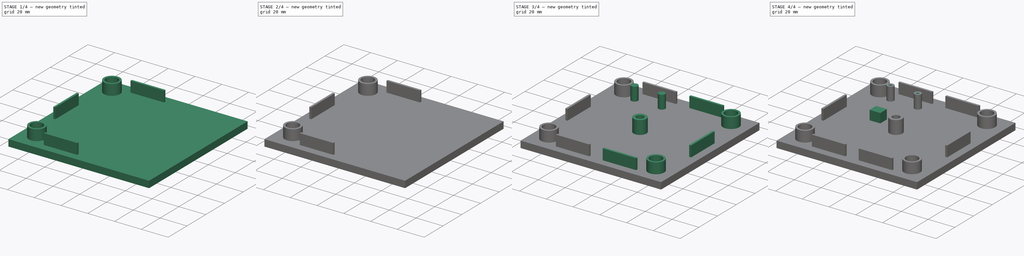
[diagram: build sequence overview — one tinted view per stage of 4, left to right]
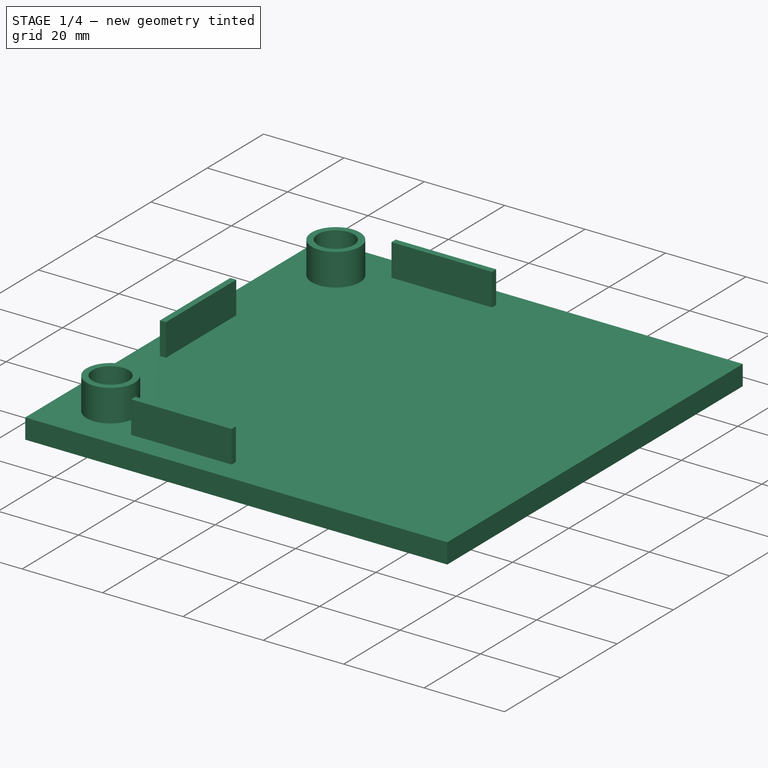
[diagram: stage 1 of 4 — iso view after this stage's code; geometry added in this stage tinted green]
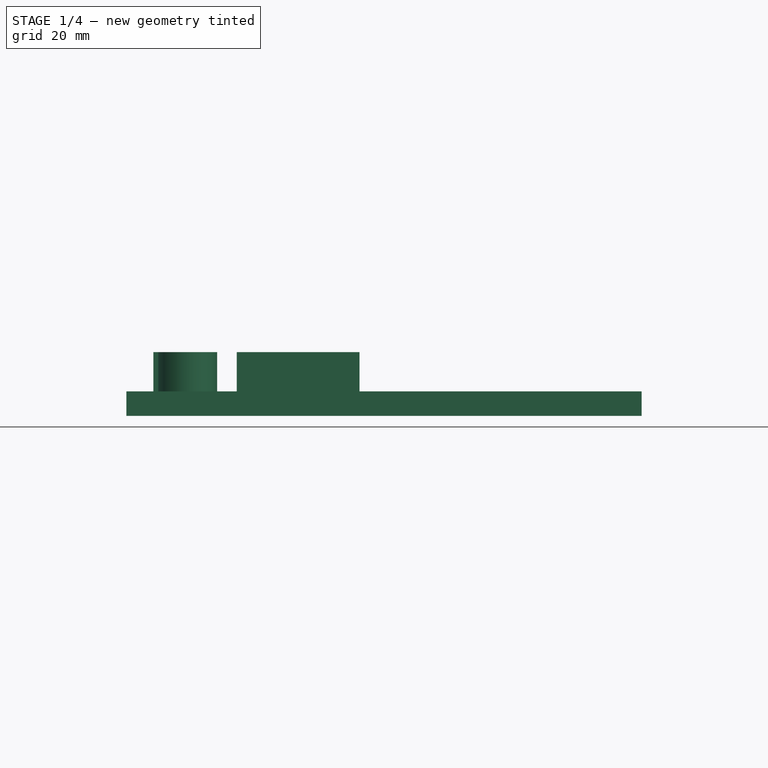
[diagram: stage 1 of 4 — front view after this stage's code; geometry added in this stage tinted green]
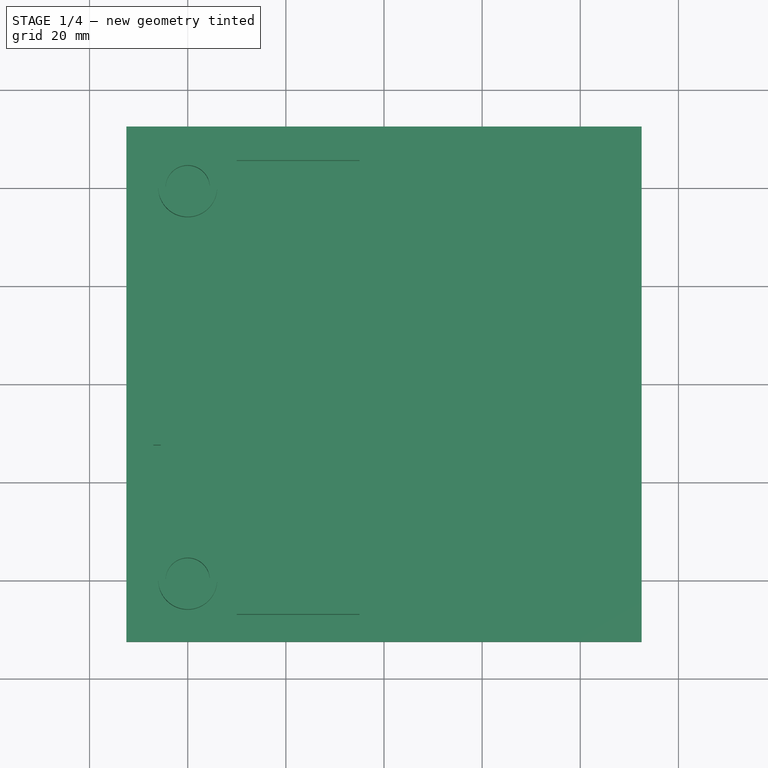
[diagram: stage 1 of 4 — top view after this stage's code; geometry added in this stage tinted green]
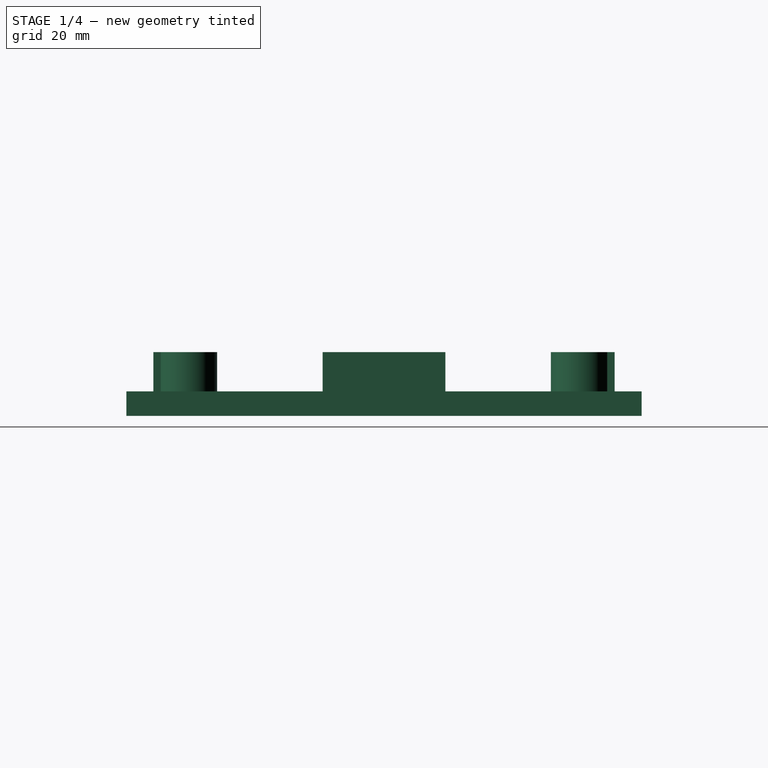
[diagram: stage 1 of 4 — right view after this stage's code; geometry added in this stage tinted green]
FCSTD DOCUMENT  (FreeCAD 0.21R33668 +26 (Git))
Label: BoxLid
License: All rights reserved
LicenseURL: http://en.wikipedia.org/wiki/All_rights_reserved
objects: Sketcher::SketchObject×9, PartDesign::Pad×5, PartDesign::Pocket×2, PartDesign::SubShapeBinder×1, PartDesign::Mirrored×1, PartDesign::Hole×1, PartDesign::Body×1
note: 28 computed .brp shape members not serialized (recipe doc carries the construction recipe); baked Part::Feature solids carry a one-line shape summary decoded from their .brp
EXTERNAL_REF file=BoxBody.FCStd obj=Body

FEATURE [PartDesign::SubShapeBinder] Binder
  BindCopyOnChange = 0
  BindMode = 0
  ClaimChildren = false
  Context = -> Body [Binder.]
  Fuse = false
  MakeFace = true
  OffsetFill = false
  OffsetIntersection = false
  OffsetJoinType = 0
  OffsetOpenResult = false
  PartialLoad = false
  Relative = true
  Support = -> [<external BoxBody.FCStd>#Body[Pad001.Face5,Pad001.Face23,Pad001.Face21,Pad001.Face20,Pad001.Face22]]
  _Version = 2
FEATURE [Sketcher::SketchObject] Sketch
  ExternalGeometry = -> [Binder]
  FullyConstrained = false
  MapMode = 5
  Support = -> [XY_Plane]
  sketch-geometry (8):
    g0: LineSegment StartX=-52.5 StartY=52.5 StartZ=0 EndX=52.5 EndY=52.5 EndZ=0
    g1: LineSegment StartX=52.5 StartY=52.5 StartZ=0 EndX=52.5 EndY=-52.5 EndZ=0
    g2: LineSegment StartX=52.5 StartY=-52.5 StartZ=0 EndX=-52.5 EndY=-52.5 EndZ=0
    g3: LineSegment StartX=-52.5 StartY=-52.5 StartZ=0 EndX=-52.5 EndY=52.5 EndZ=0
    g4: GeomPoint X=-40 Y=40 Z=0
    g5: GeomPoint X=-40 Y=-40 Z=0
    g6: GeomPoint X=40 Y=-40 Z=0
    g7: GeomPoint X=40 Y=40 Z=0
  constraints (10):
    c: Coincident(g0,g1)
    c: Coincident(g1,g2)
    c: Coincident(g2,g3)
    c: Coincident(g3,g0)
    c: Horizontal(g0)
    c: Horizontal(g2)
    c: Vertical(g1)
    c: Vertical(g3)
    c: Coincident(g1,g-6)
    c: Coincident(g-3,g0)
FEATURE [PartDesign::Pad] Pad
  Direction = (0,0,1)
  Length = 5
  Length2 = 10
  Profile = -> Sketch
  ReferenceAxis = -> Sketch [N_Axis]
  Type = 0
FEATURE [Sketcher::SketchObject] Sketch001
  ExternalGeometry = -> [Binder]
  FullyConstrained = false
  MapMode = 5
  Placement = pos=(0,0,5) rot=(0,0,1;0rad)
  Support = -> [Pad]
  sketch-geometry (22):
    g0: LineSegment StartX=-30 StartY=47 StartZ=0 EndX=-5 EndY=47 EndZ=0
    g1: LineSegment StartX=-5 StartY=47 StartZ=0 EndX=-5 EndY=45.5 EndZ=0
    g2: LineSegment StartX=-5 StartY=45.5 StartZ=0 EndX=-30 EndY=45.5 EndZ=0
    g3: LineSegment StartX=-30 StartY=45.5 StartZ=0 EndX=-30 EndY=47 EndZ=0
    g4: LineSegment StartX=-30 StartY=-45.5 StartZ=0 EndX=-5 EndY=-45.5 EndZ=0
    g5: LineSegment StartX=-5 StartY=-45.5 StartZ=0 EndX=-5 EndY=-47 EndZ=0
    g6: LineSegment StartX=-5 StartY=-47 StartZ=0 EndX=-30 EndY=-47 EndZ=0
    g7: LineSegment StartX=-30 StartY=-47 StartZ=0 EndX=-30 EndY=-45.5 EndZ=0
    g8: LineSegment StartX=-47 StartY=12.5 StartZ=0 EndX=-45.5 EndY=12.5 EndZ=0
    g9: LineSegment StartX=-45.5 StartY=12.5 StartZ=0 EndX=-45.5 EndY=-12.5 EndZ=0
    g10: LineSegment StartX=-45.5 StartY=-12.5 StartZ=0 EndX=-47 EndY=-12.5 EndZ=0
    g11: LineSegment StartX=-47 StartY=-12.5 StartZ=0 EndX=-47 EndY=12.5 EndZ=0
    g12: GeomPoint X=-36 Y=40 Z=0
    g13: Circle CenterX=-40 CenterY=40 CenterZ=0 NormalX=0 NormalY=0 NormalZ=1 AngleXU=0 Radius=4.5
    g14: GeomPoint X=-35.5 Y=40 Z=0
    g15: Circle CenterX=-40 CenterY=40 CenterZ=0 NormalX=0 NormalY=0 NormalZ=1 AngleXU=0 Radius=6
    g16: GeomPoint X=-34 Y=40 Z=0
    g17: GeomPoint X=-40.1435 Y=43.9974 Z=0
    g18: GeomPoint X=-40 Y=47.5 Z=0
    g19: GeomPoint X=-47.5 Y=40 Z=0
    g20: Circle CenterX=-40 CenterY=-40 CenterZ=0 NormalX=0 NormalY=0 NormalZ=1 AngleXU=0 Radius=4.5
    g21: Circle CenterX=-40 CenterY=-40 CenterZ=0 NormalX=0 NormalY=0 NormalZ=1 AngleXU=0 Radius=6
  constraints (55):
    c: Coincident(g0,g1)
    c: Coincident(g1,g2)
    c: Coincident(g2,g3)
    c: Coincident(g3,g0)
    c: Horizontal(g0)
    c: Horizontal(g2)
    c: Vertical(g1)
    c: Vertical(g3)
    c: Coincident(g4,g5)
    c: Coincident(g5,g6)
    c: Coincident(g6,g7)
    c: Coincident(g7,g4)
    c: Horizontal(g4)
    c: Horizontal(g6)
    c: Vertical(g5)
    c: Vertical(g7)
    c: DistanceY(g-5,g6) = 0.5
    c: DistanceY(g7,g7) = 1.5
    c: DistanceX(g4,g4) = 25
    c: DistanceX(g-4,g4) = 10
    c: Vertical(g4,g2)
    c: Vertical(g1,g4)
    c: Equal(g1,g5)
    c: DistanceY(g0,g-6) = 0.5
    c: Coincident(g8,g9)
    c: Coincident(g9,g10)
    c: Coincident(g10,g11)
    c: Coincident(g11,g8)
    c: Horizontal(g8)
    c: Horizontal(g10)
    c: Vertical(g11)
    c: Equal(g8,g1)
    c: Symmetric(g8,g9,g-1)
    c: DistanceX(g-7,g8) = 0.5
    c: DistanceY(g9,g9) = 25
    c: PointOnObject(g12,g-3)
    c: Horizontal(g12,g-3)
    c: Coincident(g13,g-3)
    c: PointOnObject(g14,g13)
    c: Horizontal(g13,g14)
    c: DistanceX(g12,g14) = 0.5
    c: Coincident(g15,g13)
    c: PointOnObject(g16,g15)
    c: Horizontal(g13,g16)
    c: DistanceX(g14,g16) = 1.5
    c: PointOnObject(g18,g-6)
    c: PointOnObject(g19,g-7)
    c: Horizontal(g13,g19)
    c: Vertical(g13,g18)
    c: DistanceY(g13,g18) = 7.5
    c: DistanceX(g19,g13) = 7.5
    c: Coincident(g20,g-4)
    c: Coincident(g21,g20)
    c: Equal(g20,g13)
    c: Equal(g21,g15)
FEATURE [PartDesign::Pad] Pad001
  BaseFeature = -> Pad
  Direction = (0,0,1)
  Length = 8
  Length2 = 10
  Profile = -> Sketch001
  ReferenceAxis = -> Sketch001 [N_Axis]
  Type = 0
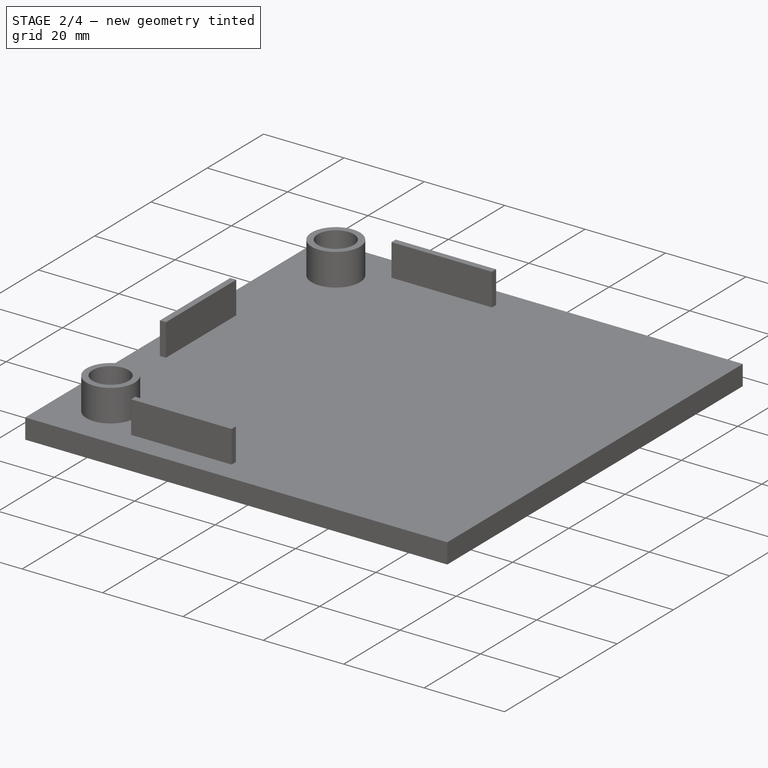
[diagram: stage 2 of 4 — iso view after this stage's code; geometry added in this stage tinted green]
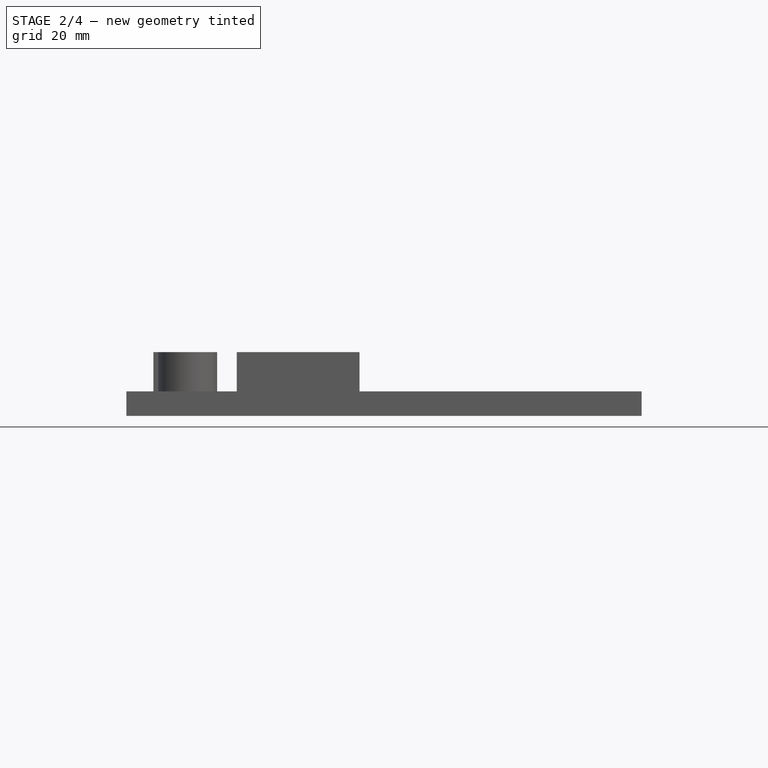
[diagram: stage 2 of 4 — front view after this stage's code; geometry added in this stage tinted green]
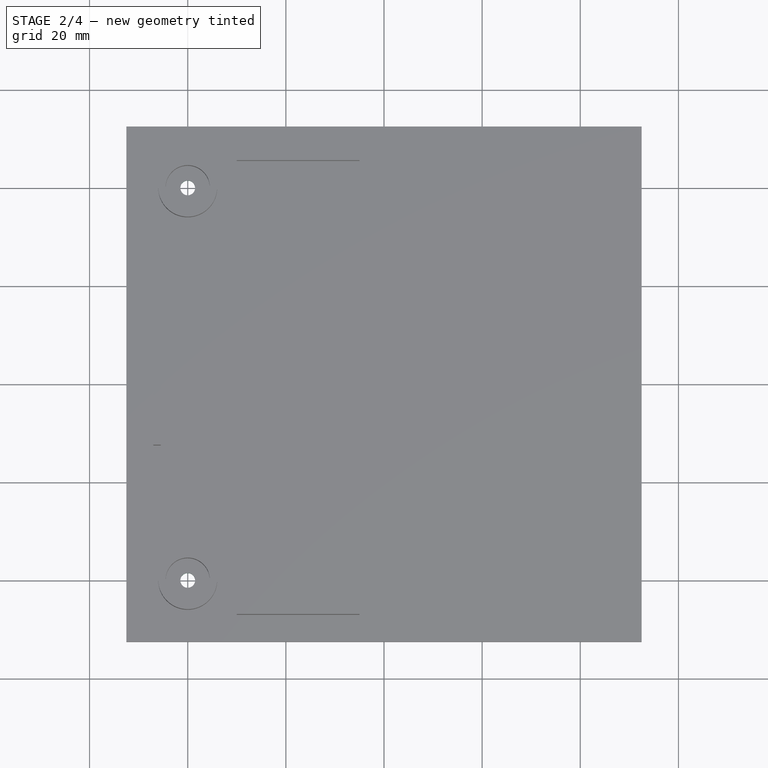
[diagram: stage 2 of 4 — top view after this stage's code; geometry added in this stage tinted green]
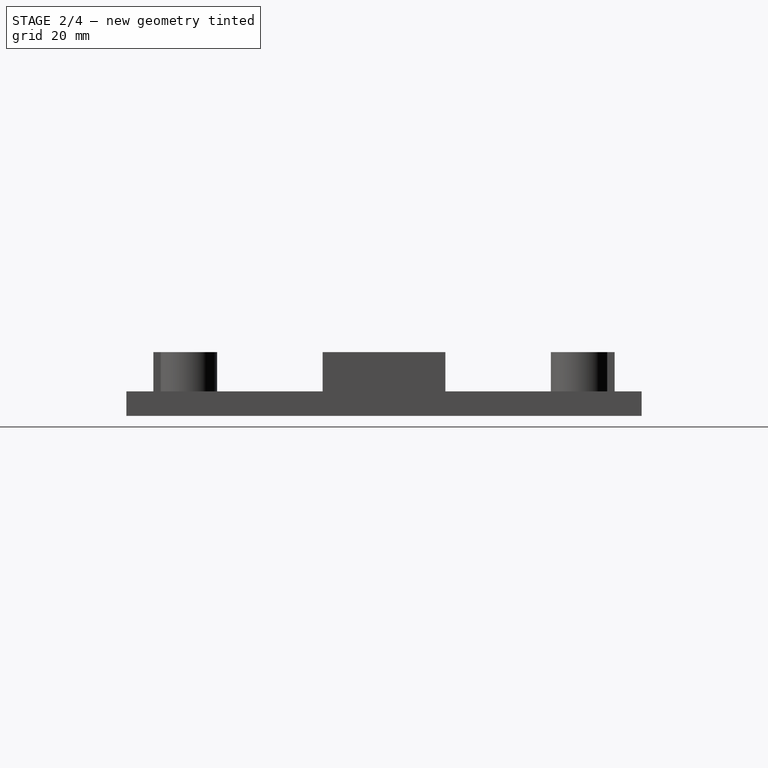
[diagram: stage 2 of 4 — right view after this stage's code; geometry added in this stage tinted green]
FEATURE [Sketcher::SketchObject] Sketch002
  ExternalGeometry = -> [Binder]
  FullyConstrained = true
  MapMode = 5
  Placement = pos=(0,0,0) rot=(1,0,0;3.14159rad)
  Support = -> [Pad001]
  sketch-geometry (2):
    g0: Circle CenterX=-40 CenterY=40 CenterZ=0 NormalX=0 NormalY=0 NormalZ=1 AngleXU=0 Radius=1.5
    g1: Circle CenterX=-40 CenterY=-40 CenterZ=0 NormalX=0 NormalY=0 NormalZ=1 AngleXU=0 Radius=1.5
  constraints (4):
    c: Coincident(g0,g-4)
    c: Coincident(g1,g-5)
    c: Diameter(g0) = 3
    c: Equal(g0,g1)
FEATURE [PartDesign::Pocket] Pocket
  BaseFeature = -> Pad001
  Direction = (0,0,1)
  Length = 5
  Length2 = 5
  Profile = -> Sketch002
  ReferenceAxis = -> Sketch002 [N_Axis]
  Type = 1
FEATURE [Sketcher::SketchObject] Sketch003
  ExternalGeometry = -> [Pocket]
  FullyConstrained = true
  MapMode = 5
  Placement = pos=(0,0,0) rot=(1,0,0;3.14159rad)
  Support = -> [Pocket]
  sketch-geometry (2):
    g0: Circle CenterX=-40 CenterY=40 CenterZ=0 NormalX=0 NormalY=0 NormalZ=1 AngleXU=0 Radius=2
    g1: Circle CenterX=-40 CenterY=-40 CenterZ=0 NormalX=0 NormalY=0 NormalZ=1 AngleXU=0 Radius=2
  constraints (4):
    c: Coincident(g0,g-3)
    c: Coincident(g1,g-4)
    c: Equal(g0,g1)
    c: Diameter(g0) = 4
FEATURE [PartDesign::Pocket] Pocket001
  BaseFeature = -> Pocket
  Direction = (0,0,1)
  Length = 2.5
  Length2 = 5
  Profile = -> Sketch003
  ReferenceAxis = -> Sketch003 [N_Axis]
  Type = 0
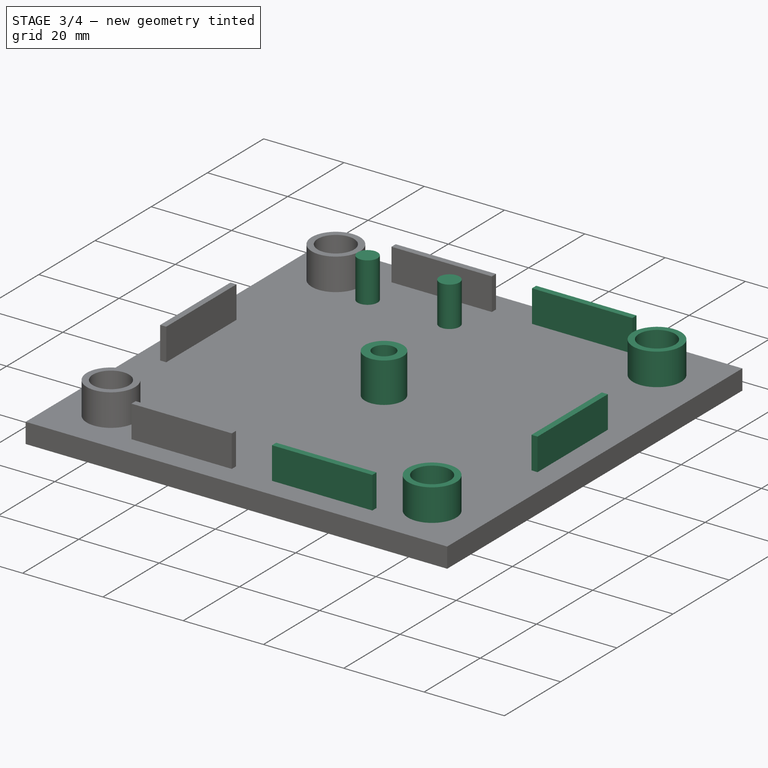
[diagram: stage 3 of 4 — iso view after this stage's code; geometry added in this stage tinted green]
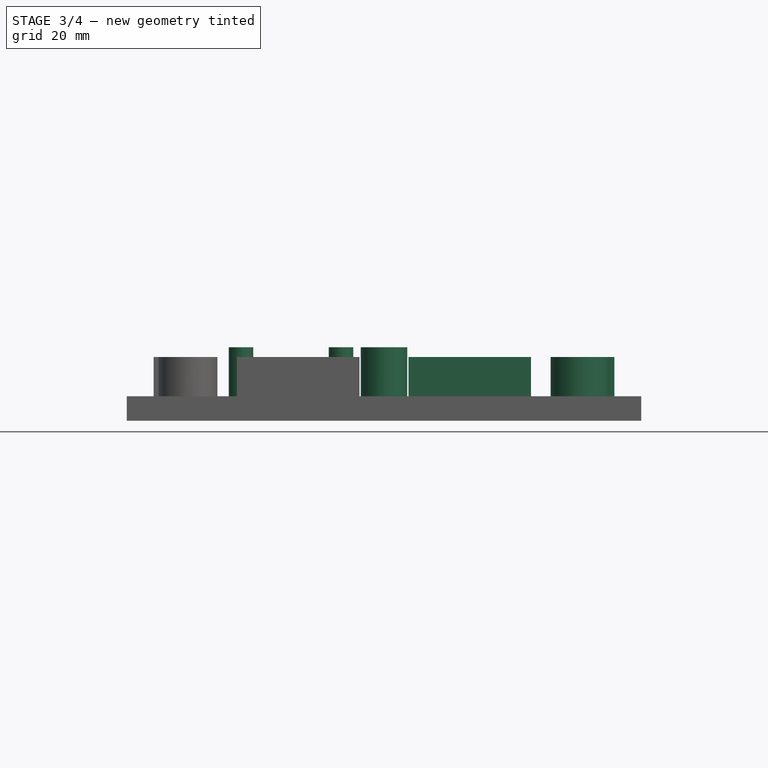
[diagram: stage 3 of 4 — front view after this stage's code; geometry added in this stage tinted green]
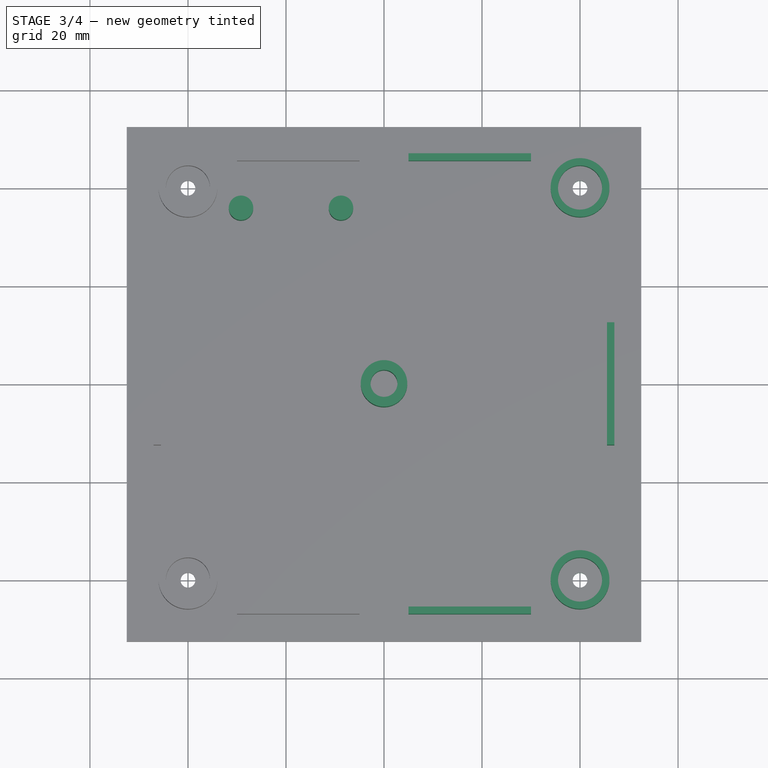
[diagram: stage 3 of 4 — top view after this stage's code; geometry added in this stage tinted green]
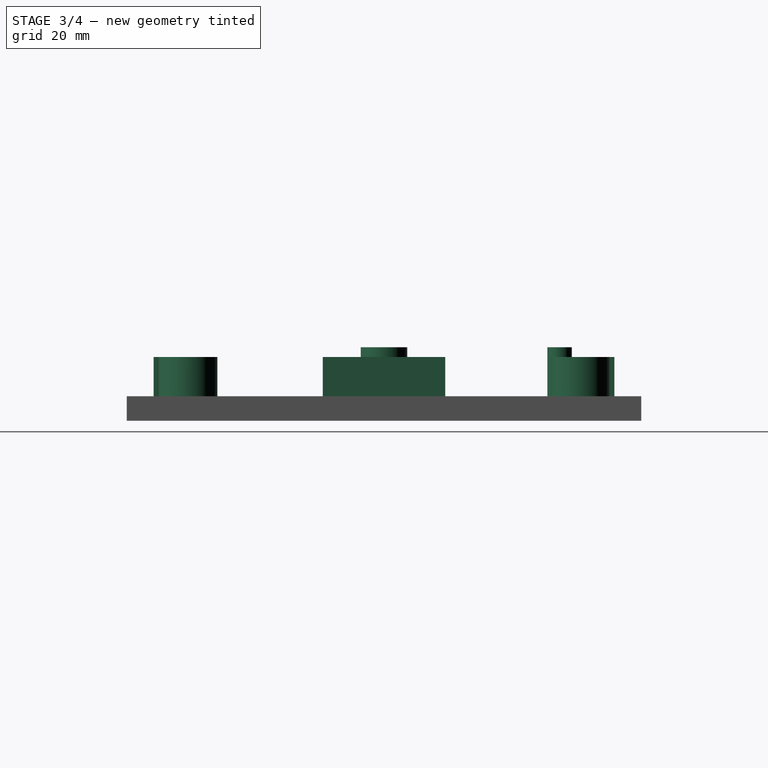
[diagram: stage 3 of 4 — right view after this stage's code; geometry added in this stage tinted green]
FEATURE [PartDesign::Mirrored] Mirrored
  BaseFeature = -> Pocket001
  MirrorPlane = -> Sketch001 [V_Axis]
  Originals = -> [Pad001,Pocket,Pocket001]
FEATURE [Sketcher::SketchObject] Sketch004
  FullyConstrained = true
  MapMode = 5
  Placement = pos=(0,0,5) rot=(0,0,1;0rad)
  Support = -> [Mirrored]
  sketch-geometry (4):
    g0: Circle CenterX=0 CenterY=0 CenterZ=0 NormalX=0 NormalY=0 NormalZ=1 AngleXU=0 Radius=2.75
    g1: Circle CenterX=0 CenterY=0 CenterZ=0 NormalX=0 NormalY=0 NormalZ=1 AngleXU=0 Radius=4.75
    g2: GeomPoint X=2.75 Y=0 Z=0
    g3: GeomPoint X=4.75 Y=0 Z=0
  constraints (8):
    c: Coincident(g0,g-1)
    c: Coincident(g1,g0)
    c: Diameter(g0) = 5.5
    c: PointOnObject(g2,g0)
    c: PointOnObject(g3,g1)
    c: Horizontal(g2,g3)
    c: Horizontal(g3,g0)
    c: DistanceX(g2,g3) = 2
FEATURE [PartDesign::Pad] Pad002
  BaseFeature = -> Mirrored
  Direction = (0,0,1)
  Length = 10
  Length2 = 10
  Profile = -> Sketch004
  ReferenceAxis = -> Sketch004 [N_Axis]
  Type = 0
FEATURE [Sketcher::SketchObject] Sketch005  label="S2MiniSize"
  ExternalGeometry = -> [Binder]
  FullyConstrained = false
  MapMode = 5
  Placement = pos=(0,0,5) rot=(0,0,1;0rad)
  Support = -> [Pad002]
  sketch-geometry (12):
    g0: ArcOfCircle CenterX=-29.1788 CenterY=35.8299 CenterZ=0 NormalX=0 NormalY=0 NormalZ=1 AngleXU=0 Radius=2.5 StartAngle=1.5708 EndAngle=3.14159
    g1: LineSegment StartX=-29.1788 StartY=38.3299 StartZ=0 EndX=-8.77882 EndY=38.3299 EndZ=0
    g2: ArcOfCircle CenterX=-8.77882 CenterY=35.8299 CenterZ=0 NormalX=0 NormalY=0 NormalZ=1 AngleXU=0 Radius=2.5 StartAngle=0 EndAngle=1.5708
    g3: LineSegment StartX=-6.27882 StartY=35.8299 StartZ=0 EndX=-6.27882 EndY=6.52989 EndZ=0
    g4: ArcOfCircle CenterX=-8.77882 CenterY=6.52989 CenterZ=0 NormalX=0 NormalY=0 NormalZ=1 AngleXU=0 Radius=2.5 StartAngle=4.71239 EndAngle=6.28319
    g5: LineSegment StartX=-8.77882 StartY=4.02989 StartZ=0 EndX=-29.1788 EndY=4.02989 EndZ=0
    g6: ArcOfCircle CenterX=-29.1788 CenterY=6.52989 CenterZ=0 NormalX=0 NormalY=0 NormalZ=1 AngleXU=0 Radius=2.5 StartAngle=3.14159 EndAngle=4.71239
    g7: LineSegment StartX=-31.6788 StartY=6.52989 StartZ=0 EndX=-31.6788 EndY=35.8299 EndZ=0
    g8: GeomPoint X=-31.6788 Y=38.3299 Z=0
    g9: GeomPoint X=-6.27882 Y=4.02989 Z=0
    g10: Circle CenterX=-29.1788 CenterY=35.8299 CenterZ=0 NormalX=0 NormalY=0 NormalZ=1 AngleXU=0 Radius=1
    g11: Circle CenterX=-8.77882 CenterY=35.8299 CenterZ=0 NormalX=0 NormalY=0 NormalZ=1 AngleXU=0 Radius=1
  constraints (27):
    c: Tangent(g0,g1) = 1.5708
    c: Tangent(g1,g2) = 1.5708
    c: Tangent(g2,g3) = 1.5708
    c: Tangent(g3,g4) = 1.5708
    c: Tangent(g4,g5) = 1.5708
    c: Tangent(g5,g6) = 1.5708
    c: Tangent(g6,g7) = 1.5708
    c: Tangent(g7,g0) = 1.5708
    c: Horizontal(g1)
    c: Horizontal(g5)
    c: Vertical(g3)
    c: Vertical(g7)
    c: Equal(g0,g2)
    c: Equal(g2,g4)
    c: Equal(g4,g6)
    c: PointOnObject(g8,g1)
    c: PointOnObject(g8,g7)
    c: PointOnObject(g9,g3)
    c: PointOnObject(g9,g5)
    c: DistanceY(g4,g1) = 34.3
    c: DistanceX(g0,g2) = 25.4
    c: DistanceX(g0,g0) = 2.5
    c: DistanceX(g0,g2) = 20.4
    c: Coincident(g10,g0)
    c: Coincident(g11,g2)
    c: Equal(g11,g10)
    c: Diameter(g11) = 2
FEATURE [Sketcher::SketchObject] Sketch006
  ExternalGeometry = -> [Sketch005]
  FullyConstrained = true
  MapMode = 5
  Placement = pos=(0,0,5) rot=(0,0,1;0rad)
  Support = -> [Pad002]
  sketch-geometry (4):
    g0: Circle CenterX=-29.1788 CenterY=35.8299 CenterZ=0 NormalX=0 NormalY=0 NormalZ=1 AngleXU=0 Radius=2.5
    g1: Circle CenterX=-8.77882 CenterY=35.8299 CenterZ=0 NormalX=0 NormalY=0 NormalZ=1 AngleXU=0 Radius=2.5
    g2: GeomPoint X=-26.6788 Y=35.8299 Z=0
    g3: GeomPoint X=-28.1788 Y=35.8299 Z=0
  constraints (8):
    c: Coincident(g0,g-3)
    c: Coincident(g1,g-4)
    c: PointOnObject(g2,g0)
    c: PointOnObject(g3,g-3)
    c: Horizontal(g0,g2)
    c: Horizontal(g3,g0)
    c: DistanceX(g3,g2) = 1.5
    c: Equal(g0,g1)
FEATURE [PartDesign::Pad] Pad003
  BaseFeature = -> Pad002
  Direction = (0,0,1)
  Length = 10
  Length2 = 10
  Profile = -> Sketch006
  ReferenceAxis = -> Sketch006 [N_Axis]
  Type = 0
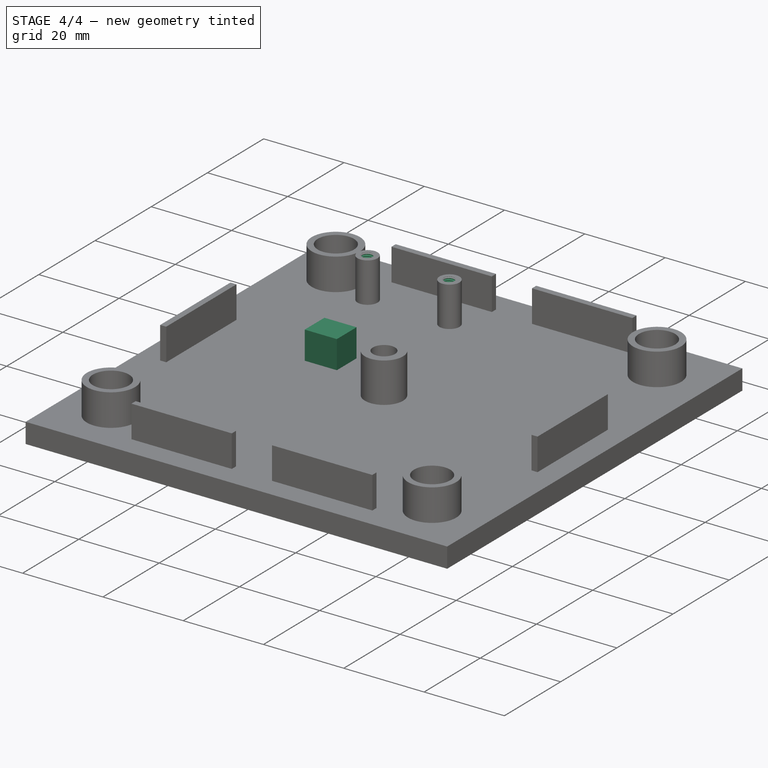
[diagram: stage 4 of 4 — iso view after this stage's code; geometry added in this stage tinted green]
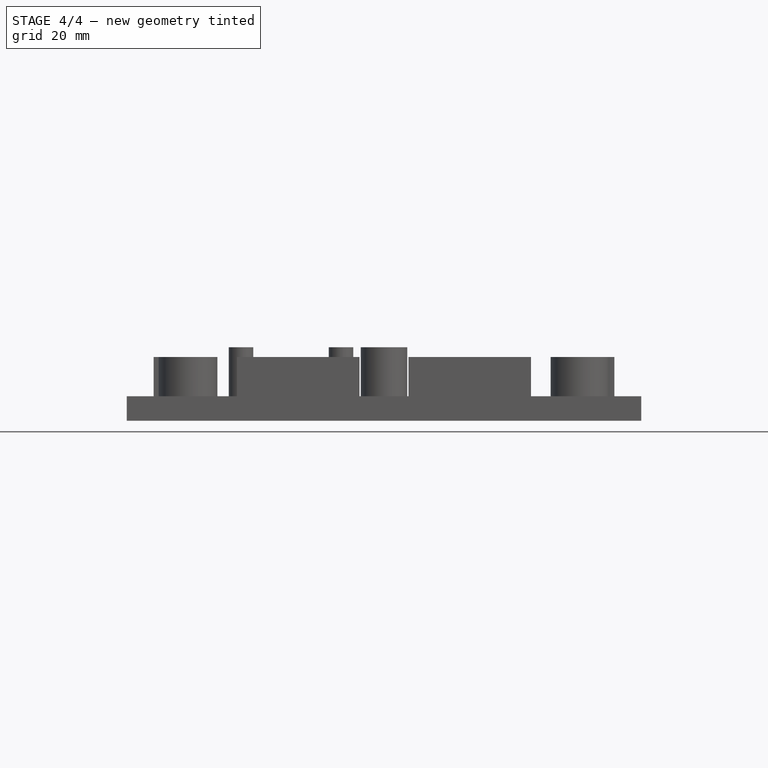
[diagram: stage 4 of 4 — front view after this stage's code; geometry added in this stage tinted green]
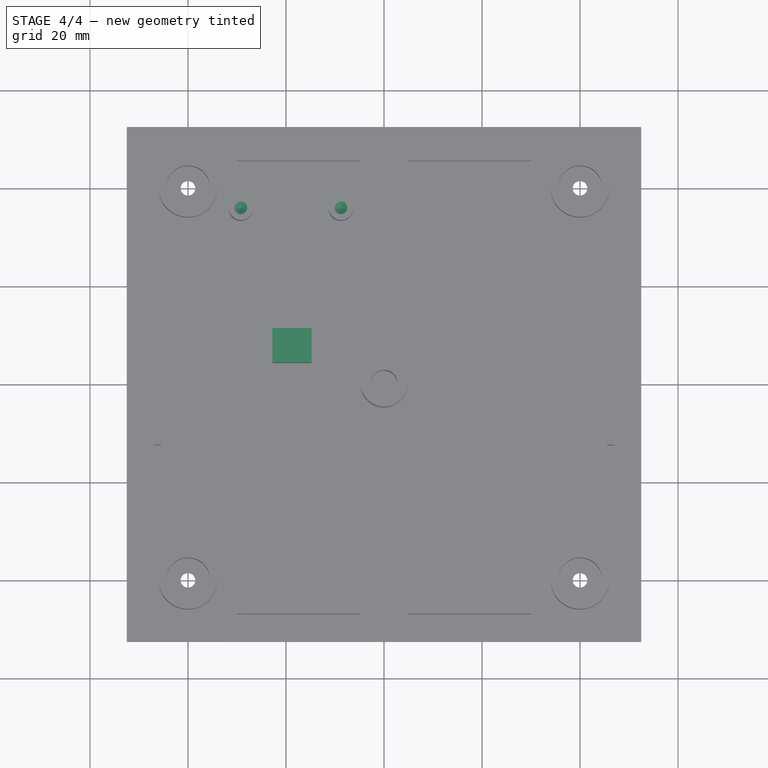
[diagram: stage 4 of 4 — top view after this stage's code; geometry added in this stage tinted green]
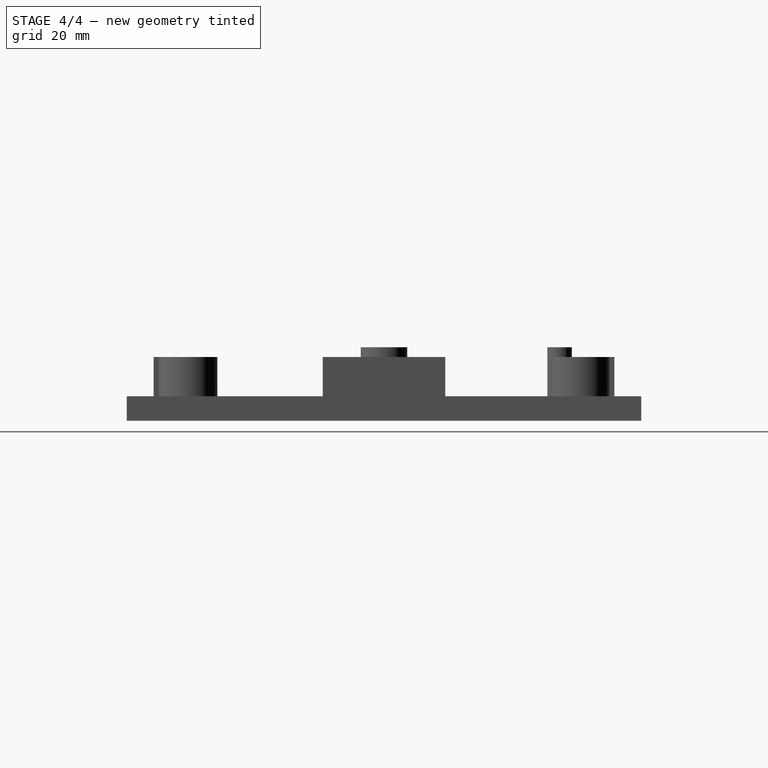
[diagram: stage 4 of 4 — right view after this stage's code; geometry added in this stage tinted green]
FEATURE [Sketcher::SketchObject] Sketch007
  ExternalGeometry = -> [Pad003]
  FullyConstrained = false
  MapMode = 5
  Placement = pos=(0,0,15) rot=(0,0,1;0rad)
  Support = -> [Pad003]
  sketch-geometry (2):
    g0: Circle CenterX=-29.1788 CenterY=35.8299 CenterZ=0 NormalX=0 NormalY=0 NormalZ=1 AngleXU=0 Radius=2.5
    g1: Circle CenterX=-8.77882 CenterY=35.8299 CenterZ=0 NormalX=0 NormalY=0 NormalZ=1 AngleXU=0 Radius=2.5
  constraints (3):
    c: Coincident(g0,g-3)
    c: Coincident(g1,g-4)
    c: Equal(g0,g1)
FEATURE [PartDesign::Hole] Hole
  BaseFeature = -> Pad003
  CustomThreadClearance = 0
  Depth = 5
  DepthType = 0
  Diameter = 2.52
  DrillForDepth = false
  DrillPoint = 1
  DrillPointAngle = 118
  HoleCutCountersinkAngle = 90
  HoleCutCustomValues = false
  HoleCutDepth = 0
  HoleCutDiameter = 6.1
  HoleCutType = 0
  ModelThread = true
  Profile = -> Sketch007
  Tapered = false
  TaperedAngle = 90
  ThreadClass = 0
  ThreadDepth = 5
  ThreadDepthType = 0
  ThreadDirection = 0
  ThreadFit = 0
  ThreadSize = 9
  ThreadType = 1
  Threaded = true
  UseCustomThreadClearance = false
FEATURE [Sketcher::SketchObject] Sketch008
  FullyConstrained = false
  MapMode = 5
  Placement = pos=(0,0,5) rot=(0,0,1;0rad)
  Support = -> [Hole]
  sketch-geometry (4):
    g0: LineSegment StartX=-22.7788 StartY=11.3299 StartZ=0 EndX=-14.7788 EndY=11.3299 EndZ=0
    g1: LineSegment StartX=-14.7788 StartY=11.3299 StartZ=0 EndX=-14.7788 EndY=4.32989 EndZ=0
    g2: LineSegment StartX=-14.7788 StartY=4.32989 StartZ=0 EndX=-22.7788 EndY=4.32989 EndZ=0
    g3: LineSegment StartX=-22.7788 StartY=4.32989 StartZ=0 EndX=-22.7788 EndY=11.3299 EndZ=0
  constraints (10):
    c: Coincident(g0,g1)
    c: Coincident(g1,g2)
    c: Coincident(g2,g3)
    c: Coincident(g3,g0)
    c: Horizontal(g0)
    c: Horizontal(g2)
    c: Vertical(g1)
    c: Vertical(g3)
    c: DistanceY(g1,g1) = 7
    c: DistanceX(g2,g1) = 8
FEATURE [PartDesign::Pad] Pad004
  BaseFeature = -> Hole
  Direction = (0,0,1)
  Length = 7
  Length2 = 10
  Profile = -> Sketch008
  ReferenceAxis = -> Sketch008 [N_Axis]
  Type = 0
FEATURE [PartDesign::Body] Body  label="Cuerpo"
  Group = -> [Binder,Sketch,Pad,Sketch001,Pad001,Sketch002,Pocket,Sketch003,Pocket001,Mirrored,Sketch004,Pad002,Sketch005,Sketch006,Pad003,Sketch007,Hole,Sketch008,Pad004]
  Origin = -> Origin
  Tip = -> Pad004
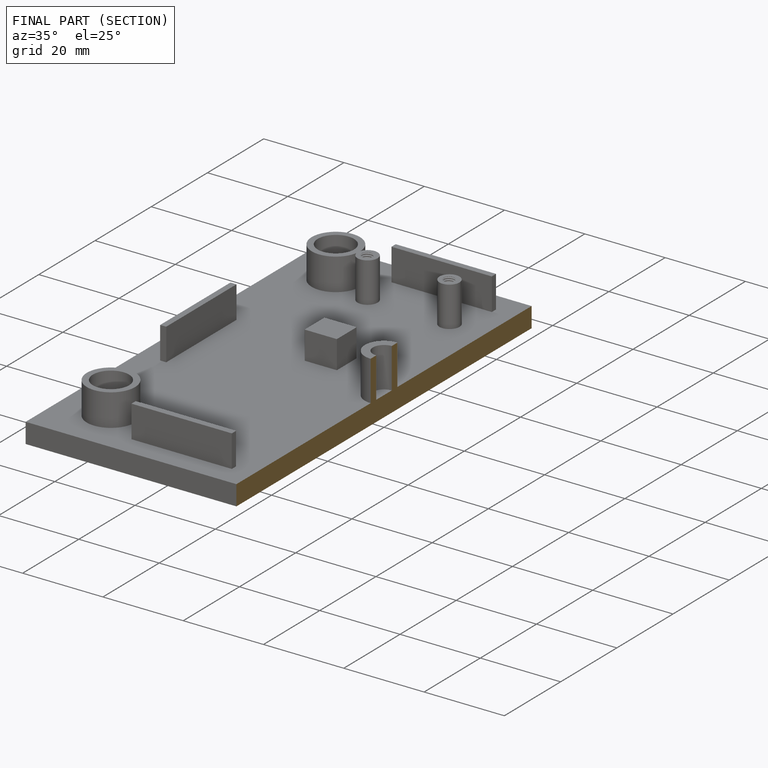
[diagram: finished part — half-section view (interior)]
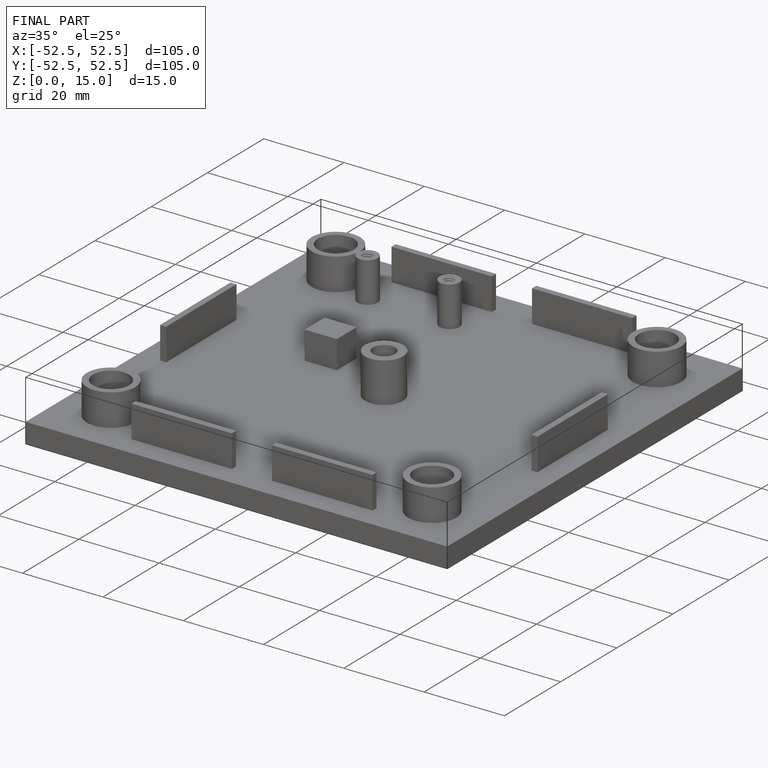
[diagram: finished part — iso view with bounding-box wireframe]
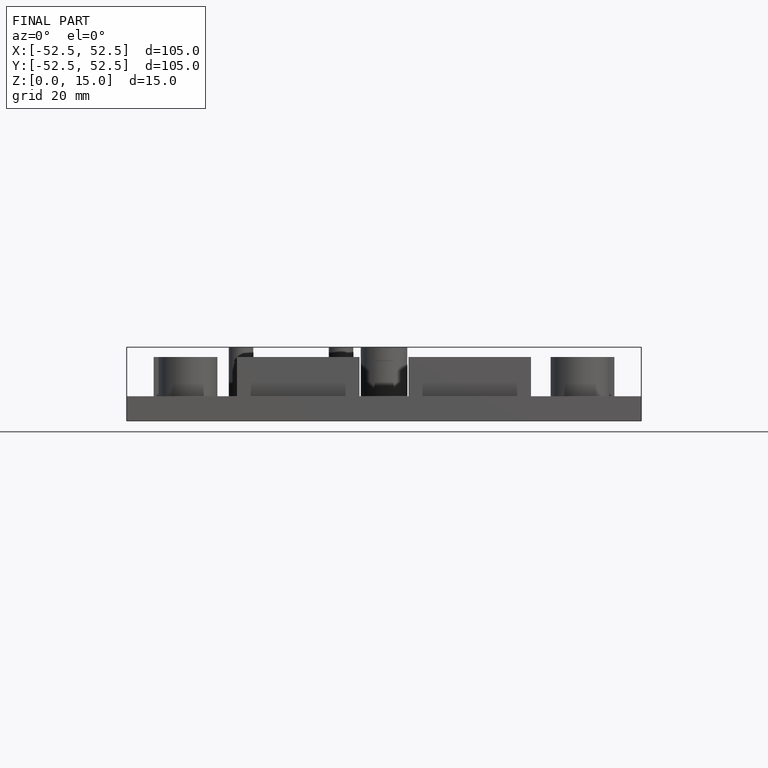
[diagram: finished part — front view with bounding-box wireframe]
